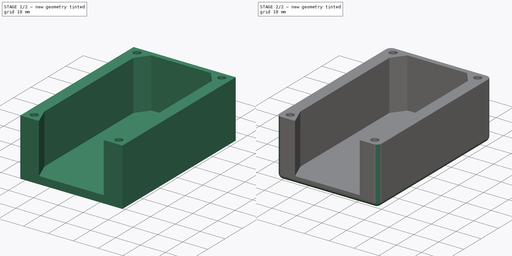
[diagram: build sequence overview — one tinted view per stage of 2, left to right]
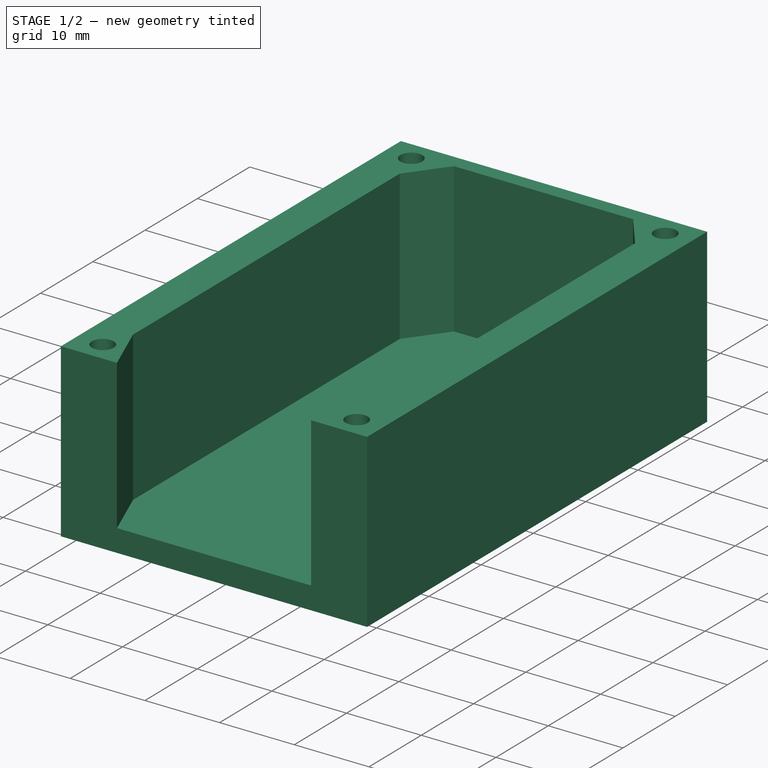
[diagram: stage 1 of 2 — iso view after this stage's code; geometry added in this stage tinted green]
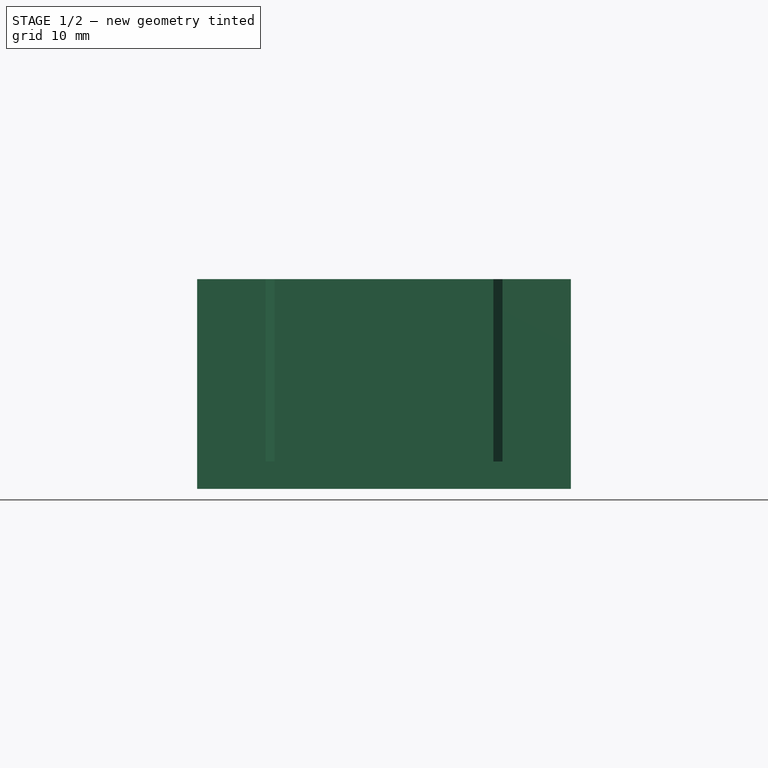
[diagram: stage 1 of 2 — front view after this stage's code; geometry added in this stage tinted green]
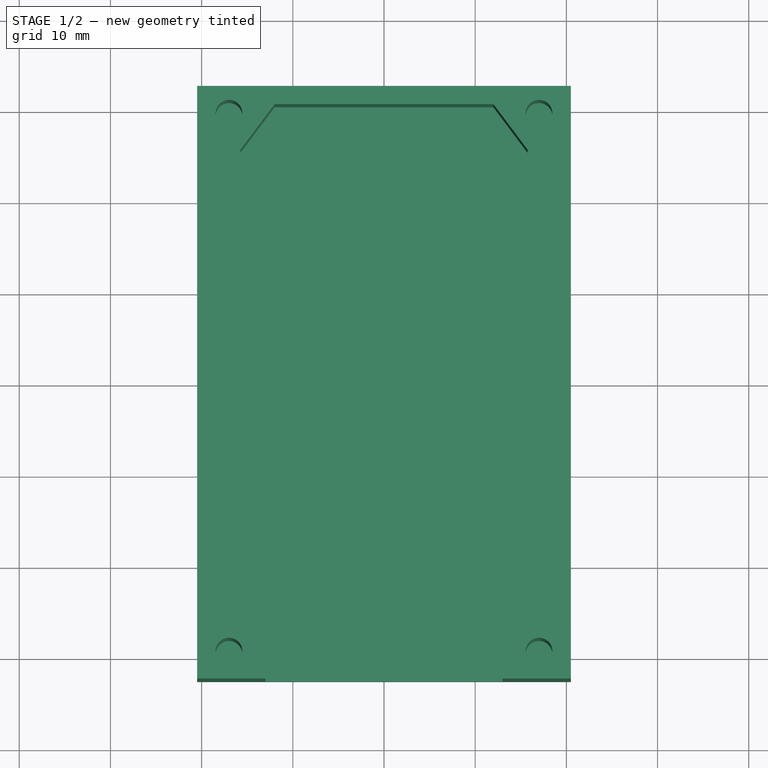
[diagram: stage 1 of 2 — top view after this stage's code; geometry added in this stage tinted green]
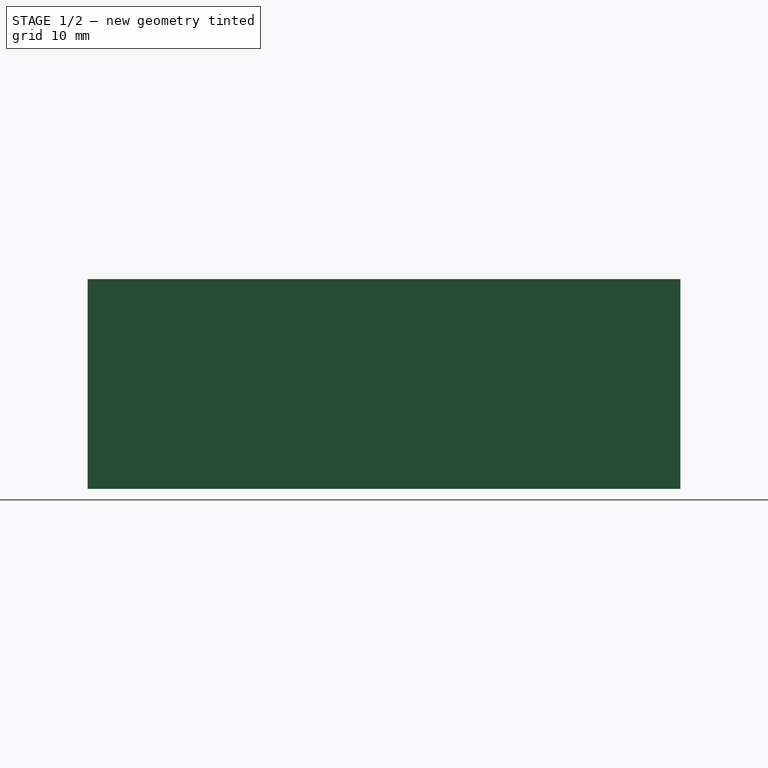
[diagram: stage 1 of 2 — right view after this stage's code; geometry added in this stage tinted green]
FCSTD DOCUMENT  (FreeCAD 0.18.1R)
Label: esp8266_temp_sensor_case
License: All rights reserved
LicenseURL: http://en.wikipedia.org/wiki/All_rights_reserved
objects: Sketcher::SketchObject×2, PartDesign::Pad×1, PartDesign::Pocket×1, PartDesign::Fillet×1, PartDesign::Body×1
note: 8 computed .brp shape members not serialized (recipe doc carries the construction recipe); baked Part::Feature solids carry a one-line shape summary decoded from their .brp

FEATURE [Sketcher::SketchObject] Sketch
  MapMode = 5
  Support = -> [XY_Plane]
  sketch-geometry (4):
    g0: LineSegment StartX=-20.5 StartY=32.5 StartZ=0 EndX=20.5 EndY=32.5 EndZ=0
    g1: LineSegment StartX=20.5 StartY=32.5 StartZ=0 EndX=20.5 EndY=-32.5 EndZ=0
    g2: LineSegment StartX=20.5 StartY=-32.5 StartZ=0 EndX=-20.5 EndY=-32.5 EndZ=0
    g3: LineSegment StartX=-20.5 StartY=-32.5 StartZ=0 EndX=-20.5 EndY=32.5 EndZ=0
  constraints (12):
    c: Coincident(g0,g1)
    c: Coincident(g1,g2)
    c: Coincident(g2,g3)
    c: Coincident(g3,g0)
    c: Horizontal(g0)
    c: Horizontal(g2)
    c: Vertical(g1)
    c: Vertical(g3)
    c: DistanceX(g0) = 20.5
    c: DistanceY(g0) = 32.5
    c: DistanceX(g0,g0) = 41
    c: DistanceY(g3,g3) = 65
FEATURE [Sketcher::SketchObject] Sketch001
  MapMode = 5
  Placement = pos=(0,0,23) rot=(0,0,1;0rad)
  sketch-geometry (12):
    g0: LineSegment StartX=-12 StartY=30.5 StartZ=0 EndX=12 EndY=30.5 EndZ=0
    g1: LineSegment StartX=12 StartY=30.5 StartZ=0 EndX=15.75 EndY=25.5 EndZ=0
    g2: LineSegment StartX=15.75 StartY=25.5 StartZ=0 EndX=15.75 EndY=-25.5 EndZ=0
    g3: LineSegment StartX=-13 StartY=-32.5 StartZ=0 EndX=-15.75 EndY=-25.5 EndZ=0
    g4: LineSegment StartX=-15.75 StartY=-25.5 StartZ=0 EndX=-15.75 EndY=25.5 EndZ=0
    g5: LineSegment StartX=-15.75 StartY=25.5 StartZ=0 EndX=-12 EndY=30.5 EndZ=0
    g6: Circle CenterX=17 CenterY=29.5 CenterZ=0 NormalX=0 NormalY=0 NormalZ=1 AngleXU=0 Radius=1.46469
    g7: Circle CenterX=-17 CenterY=29.5 CenterZ=0 NormalX=0 NormalY=0 NormalZ=1 AngleXU=0 Radius=1.46469
    g8: Circle CenterX=17 CenterY=-29.5 CenterZ=0 NormalX=0 NormalY=0 NormalZ=1 AngleXU=0 Radius=1.46469
    g9: Circle CenterX=-17 CenterY=-29.5 CenterZ=0 NormalX=0 NormalY=0 NormalZ=1 AngleXU=0 Radius=1.46469
    g10: LineSegment StartX=15.75 StartY=-25.5 StartZ=0 EndX=13 EndY=-32.5 EndZ=0
    g11: LineSegment StartX=-13 StartY=-32.5 StartZ=0 EndX=13 EndY=-32.5 EndZ=0
  constraints (21):
    c: Coincident(g0,g1)
    c: Coincident(g1,g2)
    c: Coincident(g3,g4)
    c: Coincident(g4,g5)
    c: Coincident(g5,g0)
    c: DistanceX(g1) = 15.75
    c: DistanceY(g1) = 25.5
    c: DistanceX(g0) = 12
    c: DistanceY(g0) = 30.5
    c: Symmetric(g0,g0,g-2)
    c: Symmetric(g1,g4,g-2)
    c: Symmetric(g1,g2,g-1)
    c: DistanceX(g6) = 17
    c: DistanceY(g6) = 29.5
    c: Symmetric(g6,g7,g-2)
    c: Symmetric(g7,g9,g-1)
    c: Symmetric(g9,g8,g-2)
    c: DistanceX(g3) = -13
    c: DistanceY(g3) = -32.5
    c: Symmetric(g3,g10,g-2)
    c: Symmetric(g3,g2,g-2)
FEATURE [PartDesign::Pad] Pad
  Length = 23
  Length2 = 100
  Profile = -> Sketch
  Type = 0
FEATURE [PartDesign::Pocket] Pocket
  BaseFeature = -> Pad
  Length = 20
  Length2 = 100
  Profile = -> Sketch001
  Type = 0
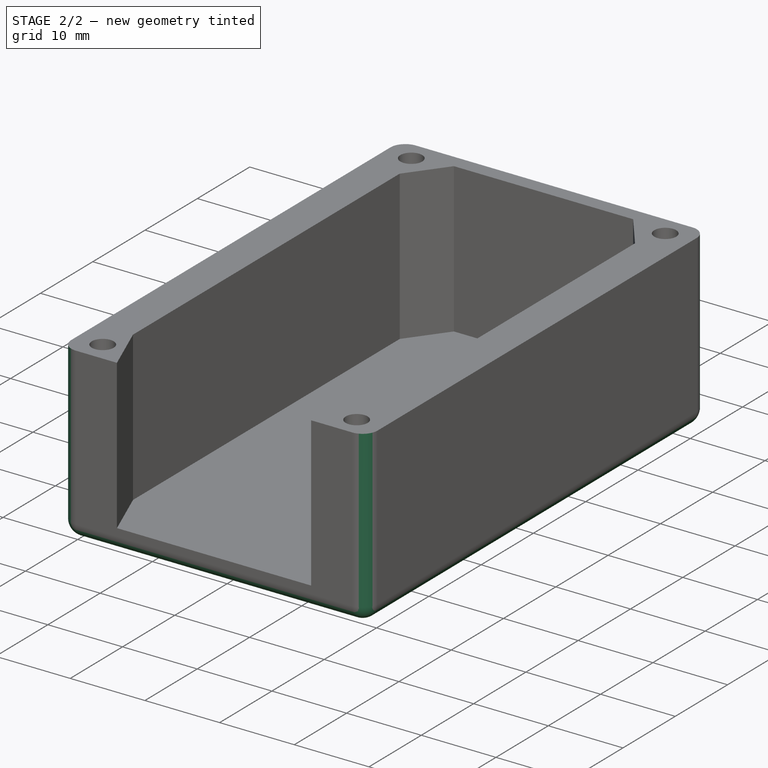
[diagram: stage 2 of 2 — iso view after this stage's code; geometry added in this stage tinted green]
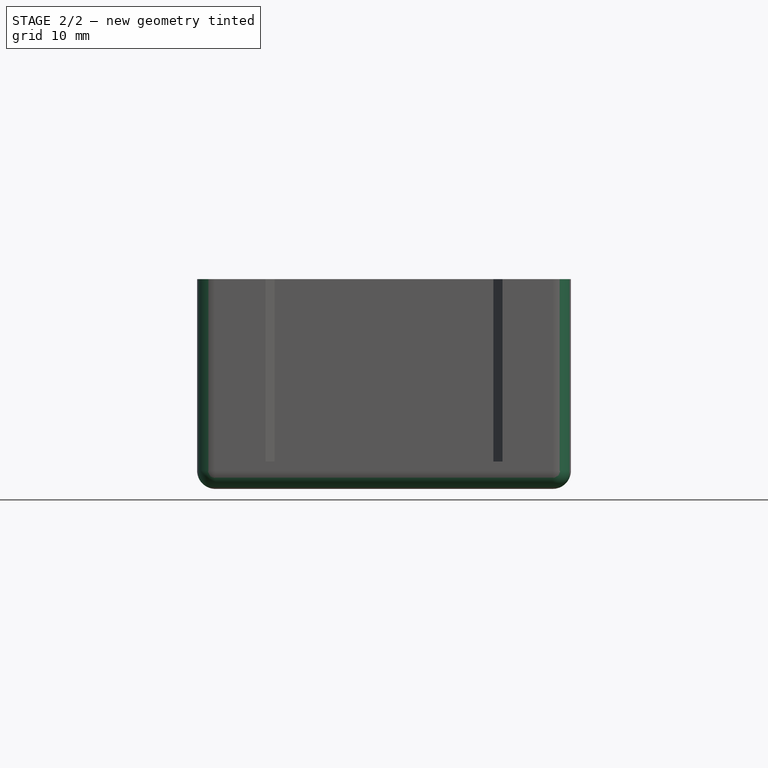
[diagram: stage 2 of 2 — front view after this stage's code; geometry added in this stage tinted green]
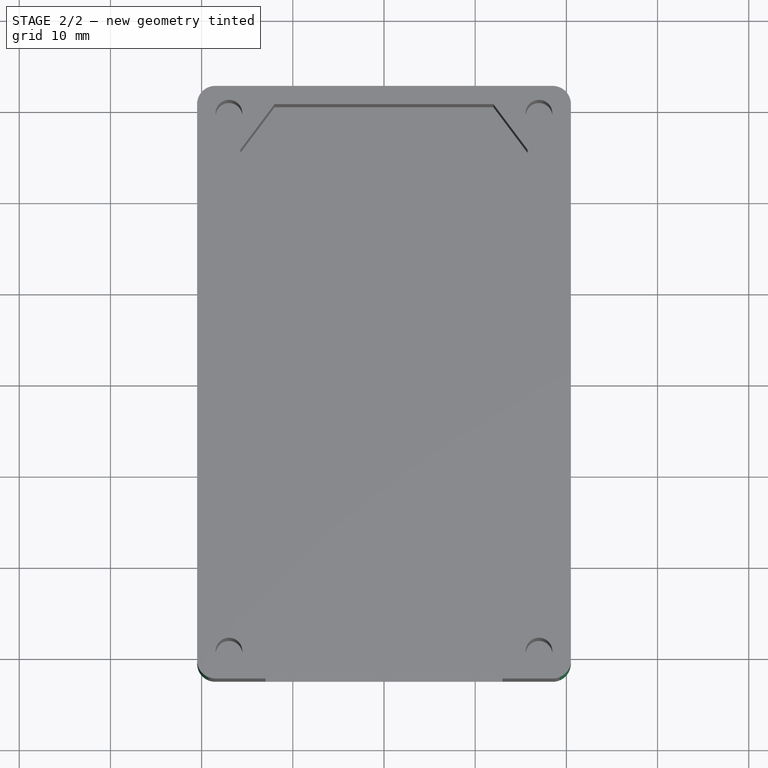
[diagram: stage 2 of 2 — top view after this stage's code; geometry added in this stage tinted green]
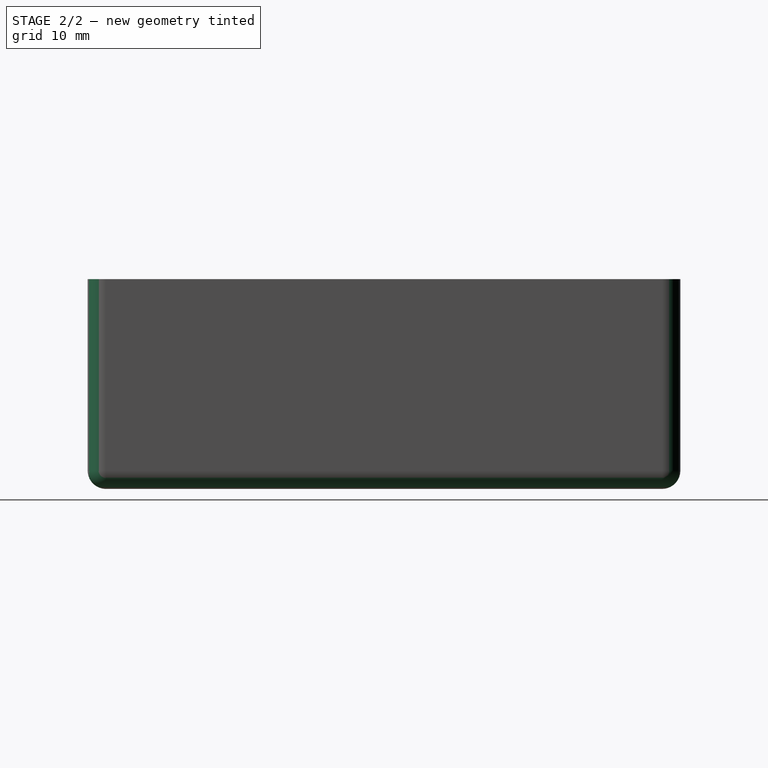
[diagram: stage 2 of 2 — right view after this stage's code; geometry added in this stage tinted green]
FEATURE [PartDesign::Fillet] Fillet
  Base = -> Pocket [Edge5,Edge11,Edge8,Edge9,Edge2,Edge3,Edge1,Edge6]
  BaseFeature = -> Pocket
  Radius = 2
FEATURE [PartDesign::Body] Body
  Group = -> [Sketch,Sketch001,Pad,Pocket,Fillet]
  Origin = -> Origin
  Tip = -> Fillet
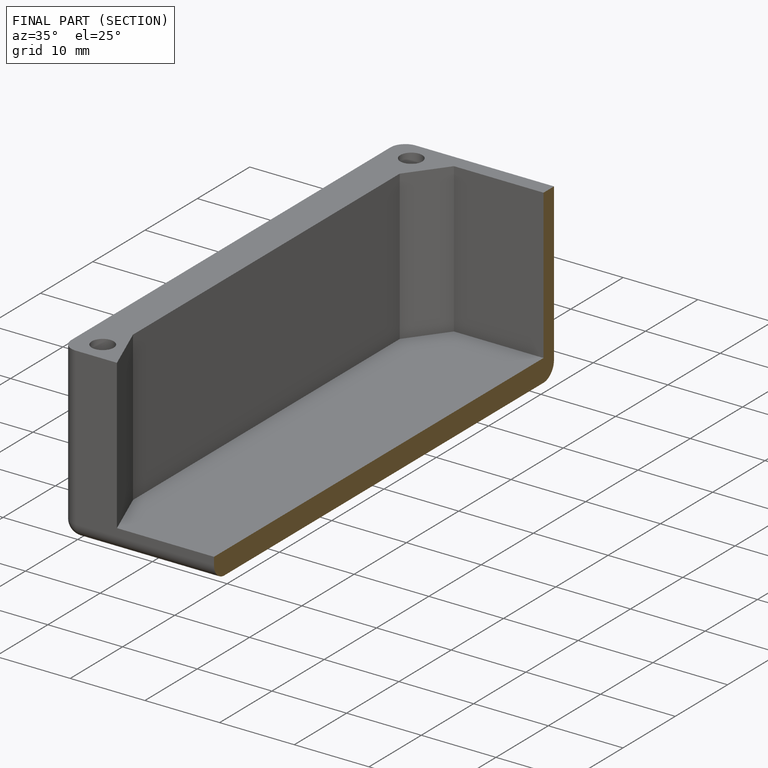
[diagram: finished part — half-section view (interior)]
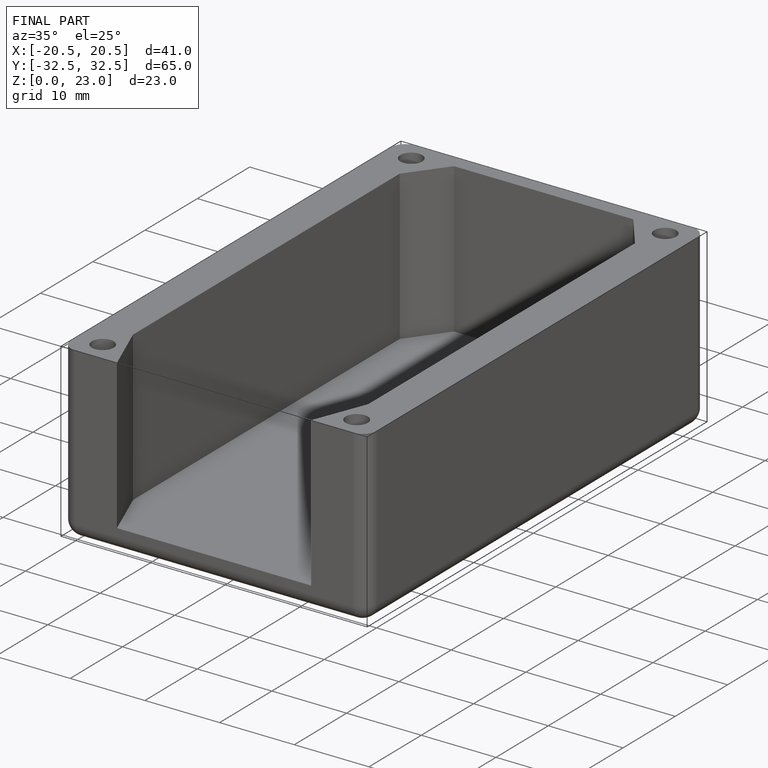
[diagram: finished part — iso view with bounding-box wireframe]
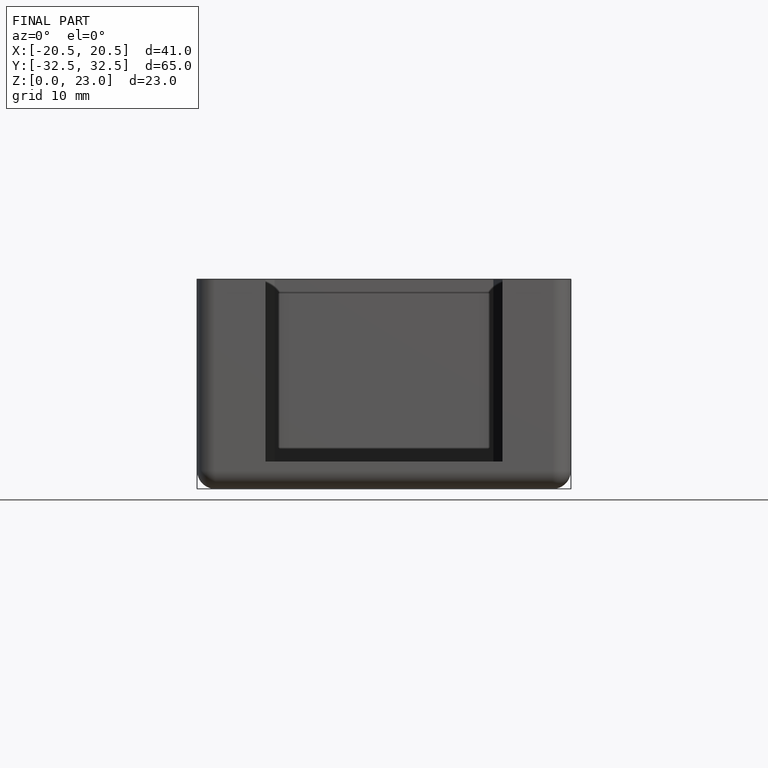
[diagram: finished part — front view with bounding-box wireframe]
